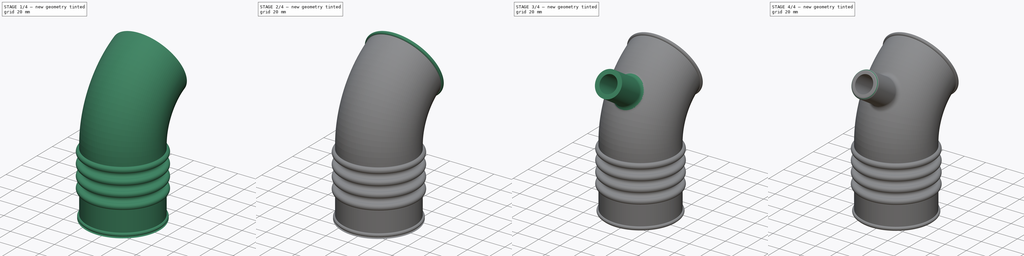
[diagram: build sequence overview — one tinted view per stage of 4, left to right]
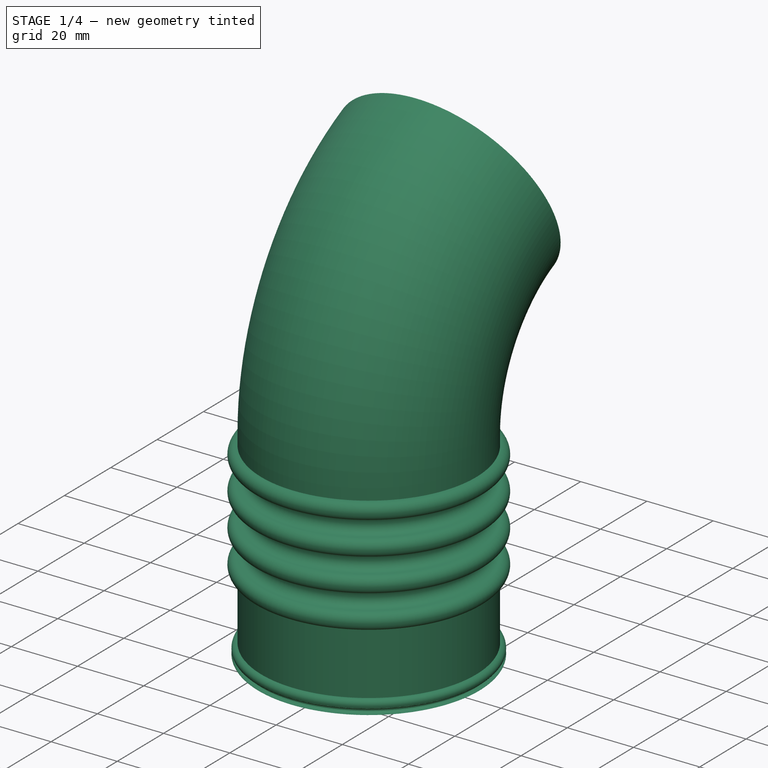
[diagram: stage 1 of 4 — iso view after this stage's code; geometry added in this stage tinted green]
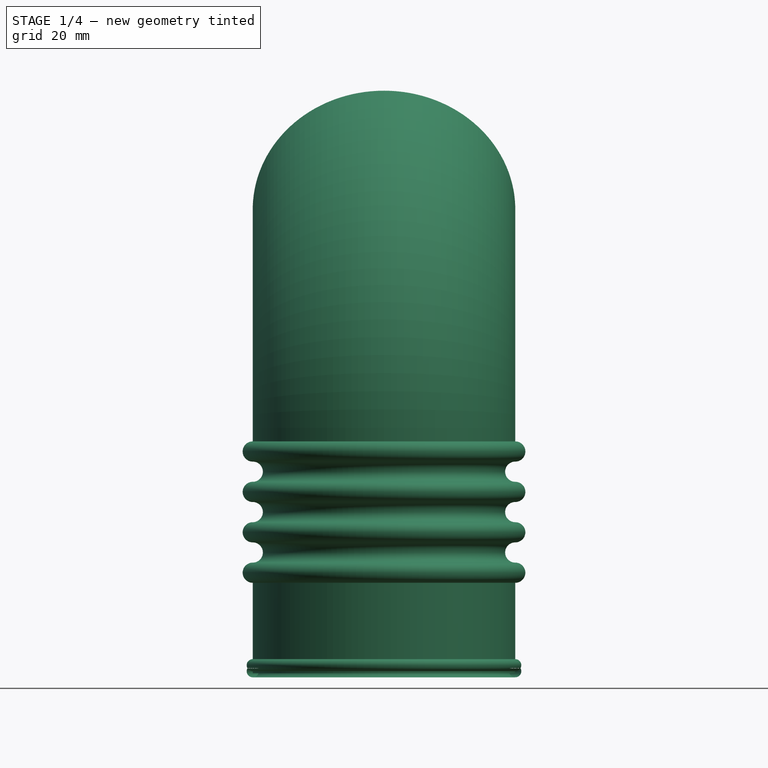
[diagram: stage 1 of 4 — front view after this stage's code; geometry added in this stage tinted green]
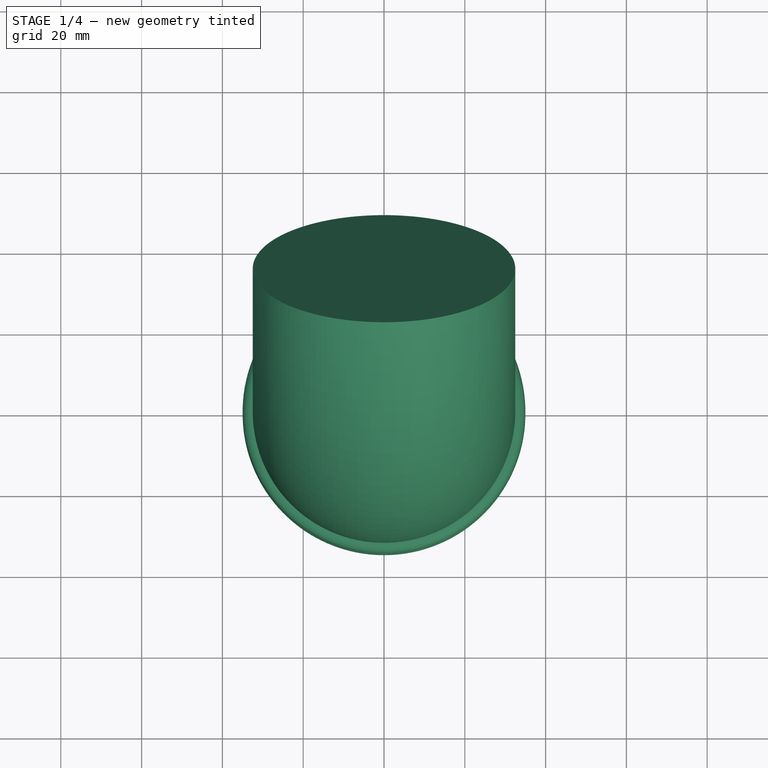
[diagram: stage 1 of 4 — top view after this stage's code; geometry added in this stage tinted green]
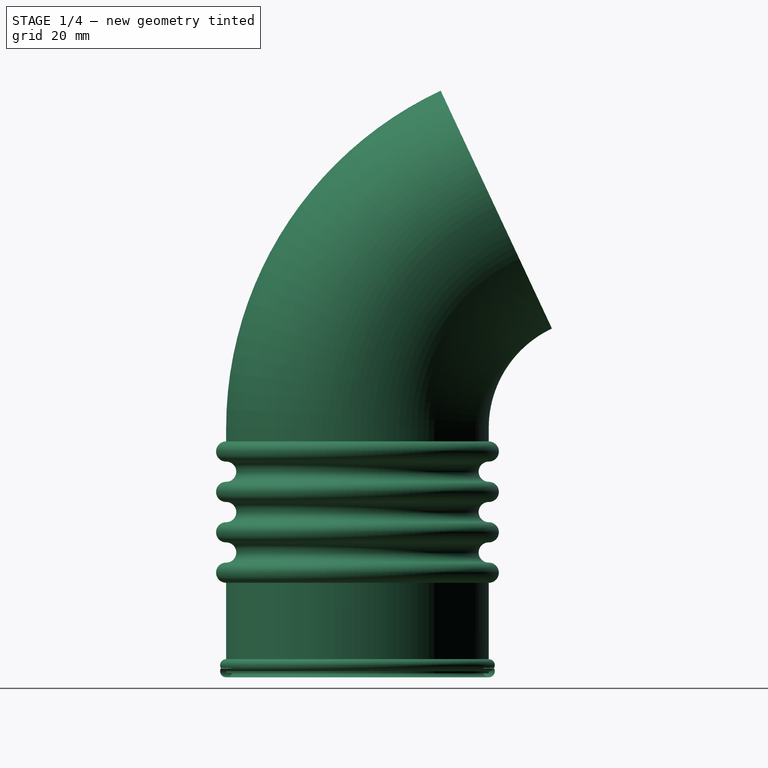
[diagram: stage 1 of 4 — right view after this stage's code; geometry added in this stage tinted green]
FCSTD DOCUMENT  (FreeCAD 1.0R39109 (Git))
Label: MAF Pipe Rotate Sketch
License: All rights reserved
LicenseURL: https://en.wikipedia.org/wiki/All_rights_reserved
objects: Sketcher::SketchObject×8, PartDesign::Plane×3, PartDesign::Fillet×3, PartDesign::Revolution×2, PartDesign::AdditivePipe×1, PartDesign::SubtractivePipe×1, PartDesign::Pad×1, PartDesign::Hole×1, PartDesign::Body×1
note: 47 computed .brp shape members not serialized (recipe doc carries the construction recipe); baked Part::Feature solids carry a one-line shape summary decoded from their .brp

FEATURE [Sketcher::SketchObject] Sketch
  ArcFitTolerance = 1e-06
  AttachmentSupport = -> [YZ_Plane]
  FullyConstrained = false
  MakeInternals = false
  MapMode = 5
  Placement = pos=(0,0,0) rot=(0.57735,0.57735,0.57735;2.0944rad)
  sketch-geometry (25):
    g0: LineSegment StartX=-32.5 StartY=60.7612 StartZ=0 EndX=-32.5 EndY=57.4054 EndZ=0
    g1: ArcOfCircle CenterX=-32.5 CenterY=24.9054 CenterZ=0 NormalX=0 NormalY=0 NormalZ=1 AngleXU=0 Radius=2.5 StartAngle=1.5708 EndAngle=4.71239
    g2: ArcOfCircle CenterX=-32.5 CenterY=29.9054 CenterZ=0 NormalX=0 NormalY=0 NormalZ=1 AngleXU=0 Radius=2.5 StartAngle=4.71239 EndAngle=7.85398
    g3: ArcOfCircle CenterX=-32.5 CenterY=34.9054 CenterZ=0 NormalX=0 NormalY=0 NormalZ=1 AngleXU=0 Radius=2.5 StartAngle=1.5708 EndAngle=4.71239
    g4: ArcOfCircle CenterX=-32.5 CenterY=39.9054 CenterZ=0 NormalX=0 NormalY=0 NormalZ=1 AngleXU=0 Radius=2.5 StartAngle=4.71239 EndAngle=7.85398
    g5: ArcOfCircle CenterX=-32.5 CenterY=44.9054 CenterZ=0 NormalX=0 NormalY=0 NormalZ=1 AngleXU=0 Radius=2.5 StartAngle=1.5708 EndAngle=4.71239
    g6: ArcOfCircle CenterX=-32.5 CenterY=49.9054 CenterZ=0 NormalX=0 NormalY=0 NormalZ=1 AngleXU=0 Radius=2.5 StartAngle=4.71239 EndAngle=7.85398
    g7: ArcOfCircle CenterX=-32.5 CenterY=54.9054 CenterZ=0 NormalX=0 NormalY=0 NormalZ=1 AngleXU=0 Radius=2.5 StartAngle=1.5708 EndAngle=4.71239
    g8: LineSegment StartX=-32.5 StartY=22.4054 StartZ=0 EndX=-32.5 EndY=3.50888 EndZ=0
    g9: ArcOfCircle CenterX=-32.5 CenterY=2.00888 CenterZ=0 NormalX=0 NormalY=0 NormalZ=1 AngleXU=0 Radius=1.5 StartAngle=1.5708 EndAngle=4.7131
    g10: LineSegment StartX=-31 StartY=60.7612 StartZ=0 EndX=-30.9999 EndY=57.5012 EndZ=0
    g11: ArcOfCircle CenterX=-32.5005 CenterY=57.5011 CenterZ=0 NormalX=0 NormalY=0 NormalZ=-1 AngleXU=1.5708 Radius=1.50065 StartAngle=1.57076 EndAngle=3.14138
    g12: ArcOfCircle CenterX=-32.5 CenterY=55.0005 CenterZ=0 NormalX=0 NormalY=0 NormalZ=1 AngleXU=0 Radius=1.00001 StartAngle=1.571 EndAngle=4.71239
    g13: ArcOfCircle CenterX=-32.5 CenterY=50.0005 CenterZ=0 NormalX=0 NormalY=0 NormalZ=1 AngleXU=0 Radius=4 StartAngle=4.71239 EndAngle=7.85399
    g14: ArcOfCircle CenterX=-32.5 CenterY=45.0005 CenterZ=0 NormalX=0 NormalY=0 NormalZ=1 AngleXU=0 Radius=1 StartAngle=1.5708 EndAngle=4.71239
    g15: ArcOfCircle CenterX=-32.5 CenterY=40.0005 CenterZ=0 NormalX=0 NormalY=0 NormalZ=1 AngleXU=0 Radius=4 StartAngle=4.71239 EndAngle=7.85398
    g16: ArcOfCircle CenterX=-32.5 CenterY=35.0005 CenterZ=0 NormalX=0 NormalY=0 NormalZ=1 AngleXU=0 Radius=1 StartAngle=1.5708 EndAngle=4.71239
    g17: ArcOfCircle CenterX=-32.5 CenterY=30.0005 CenterZ=0 NormalX=0 NormalY=0 NormalZ=1 AngleXU=0 Radius=4 StartAngle=4.71239 EndAngle=7.85398
    g18: ArcOfCircle CenterX=-32.5 CenterY=24.9999 CenterZ=0 NormalX=0 NormalY=0 NormalZ=1 AngleXU=0 Radius=1.0006 StartAngle=1.57079 EndAngle=4.71227
    g19: ArcOfCircle CenterX=-32.5003 CenterY=22.4979 CenterZ=0 NormalX=0 NormalY=0 NormalZ=-1 AngleXU=6.32484e-07 Radius=1.50137 StartAngle=1.57091 EndAngle=3.14159
    g20: LineSegment StartX=-30.9989 StartY=22.4979 StartZ=0 EndX=-30.9989 EndY=0 EndZ=0
    g21: ArcOfCircle CenterX=-32.5 CenterY=0.508885 CenterZ=0 NormalX=0 NormalY=0 NormalZ=-1 AngleXU=2e-16 Radius=1.5 StartAngle=1.5708 EndAngle=1.5708
    g22: LineSegment StartX=-30.9989 StartY=0 StartZ=0 EndX=-32.4989 EndY=0 EndZ=0
    g23: LineSegment StartX=-32.4989 StartY=0.508885 StartZ=0 EndX=-32.4989 EndY=0 EndZ=0
    g24: LineSegment StartX=-32.5 StartY=60.7612 StartZ=0 EndX=-31 EndY=60.7612 EndZ=0
  constraints (49):
    c: Vertical(g0)
    c: Diameter(g1) = 5
    c: PointOnObject(g1,g0)
    c: Diameter(g2) = 5
    c: Diameter(g3) = 5
    c: PointOnObject(g3,g0)
    c: Diameter(g4) = 5
    c: PointOnObject(g4,g0)
    c: Diameter(g5) = 5
    c: PointOnObject(g5,g0)
    c: Diameter(g6) = 5
    c: PointOnObject(g6,g0)
    c: Diameter(g7) = 5
    c: PointOnObject(g7,g0)
    c: PointOnObject(g1,g8)
    c: PointOnObject(g8,g1)
    c: Tangent(g2,g1) = 1.5708
    c: Tangent(g3,g2) = 1.5708
    c: Tangent(g4,g3) = 1.5708
    c: Tangent(g5,g4) = 1.5708
    c: Tangent(g6,g5) = 1.5708
    c: Tangent(g7,g6) = 1.5708
    c: Coincident(g0,g7)
    c: Diameter(g9) = 3
    c: PointOnObject(g9,g8)
    c: Coincident(g9,g8)
    c: Tangent(g10,g11) = 1.5708
    c: Tangent(g11,g12) = 1.5708
    c: Tangent(g12,g13) = 1.5708
    c: Tangent(g13,g14) = 1.5708
    c: Tangent(g14,g15) = 1.5708
    c: Tangent(g15,g16) = 1.5708
    c: Tangent(g16,g17) = 1.5708
    c: Tangent(g17,g18) = 1.5708
    c: Tangent(g18,g19) = 1.5708
    c: Tangent(g19,g20) = 1.5708
    c: Vertical(g20)
    c: Vertical(g8)
    c: Distance(g22) = 1.5
    c: Coincident(g22,g20)
    c: PointOnObject(g22,g-1)
    c: Horizontal(g22)
    c: Coincident(g23,g9)
    c: Coincident(g23,g22)
    c: Vertical(g23)
    c: Distance(g24) = 1.5
    c: Coincident(g10,g24)
    c: Coincident(g21,g21)
    c: Coincident(g0,g24)
FEATURE [PartDesign::Revolution] Revolution
  Angle = 360
  Angle2 = 60
  Axis = (0,0,1)
  Base = (0,0,0)
  Placement = pos=(0,0,0) rot=(1,1,1;2.0944rad)
  Profile = -> Sketch
  ReferenceAxis = -> Sketch [V_Axis]
  Refine = true
  Suppressed = false
  Type = 0
FEATURE [Sketcher::SketchObject] Sketch001  label="CurveBase"
  ArcFitTolerance = 1e-06
  AttachmentSupport = -> [Revolution]
  ExternalGeometry = -> [Revolution]
  FullyConstrained = true
  MakeInternals = false
  MapMode = 5
  Placement = pos=(-2.02e-14,6.7e-15,60.7612) rot=(0,0,-1;1.5708rad)
  sketch-geometry (1):
    g0: Circle CenterX=0 CenterY=0 CenterZ=0 NormalX=0 NormalY=0 NormalZ=1 AngleXU=0 Radius=32.5
  constraints (2):
    c: Coincident(g0,g-1)
    c: Tangent(g0,g-3)
FEATURE [Sketcher::SketchObject] Sketch002  label="Curve"
  ArcFitTolerance = 1e-06
  AttachmentSupport = -> [YZ_Plane]
  ExternalGeometry = -> [Revolution]
  FullyConstrained = false
  MakeInternals = false
  MapMode = 5
  Placement = pos=(0,0,0) rot=(0.57735,0.57735,0.57735;2.0944rad)
  sketch-geometry (1):
    g0: ArcOfCircle CenterX=59.641 CenterY=60.7612 CenterZ=0 NormalX=0 NormalY=0 NormalZ=1 AngleXU=0 Radius=59.641 StartAngle=2.00835 EndAngle=3.14159
  constraints (3):
    c: PointOnObject(g0,g-2)
    c: PointOnObject(g0,g-3)
    c: Perpendicular(g0,g-3)
FEATURE [PartDesign::AdditivePipe] AdditivePipe
  AuxilleryCurvelinear = true
  AuxillerySpineTangent = false
  BaseFeature = -> Revolution
  Binormal = (0,0,0)
  Mode = 0
  Placement = pos=(0,0,0) rot=(1,1,1;2.0944rad)
  Profile = -> Sketch001
  Refine = true
  Spine = -> Sketch002
  SpineTangent = false
  Suppressed = false
  Transformation = 0
  Transition = 0
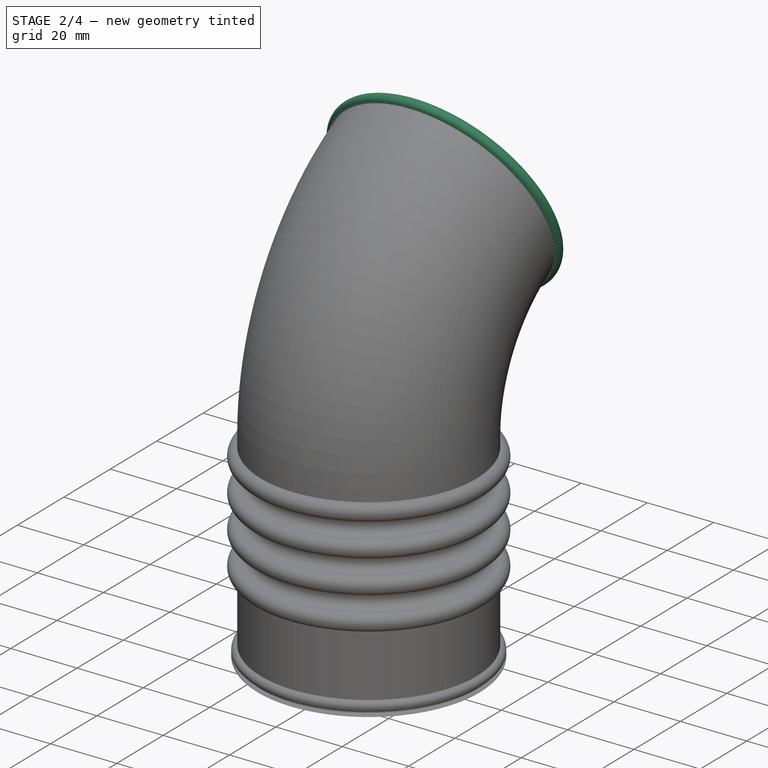
[diagram: stage 2 of 4 — iso view after this stage's code; geometry added in this stage tinted green]
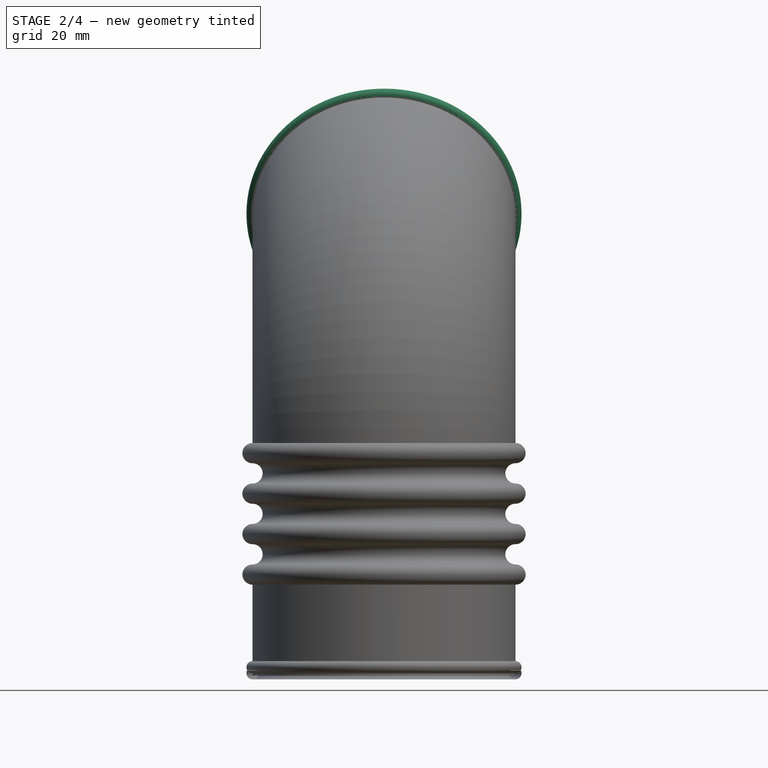
[diagram: stage 2 of 4 — front view after this stage's code; geometry added in this stage tinted green]
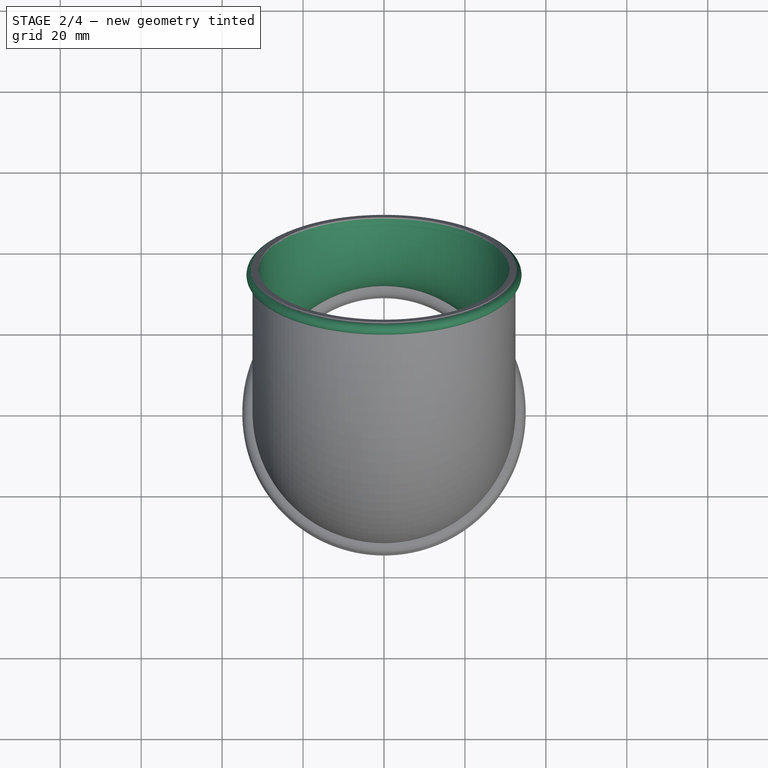
[diagram: stage 2 of 4 — top view after this stage's code; geometry added in this stage tinted green]
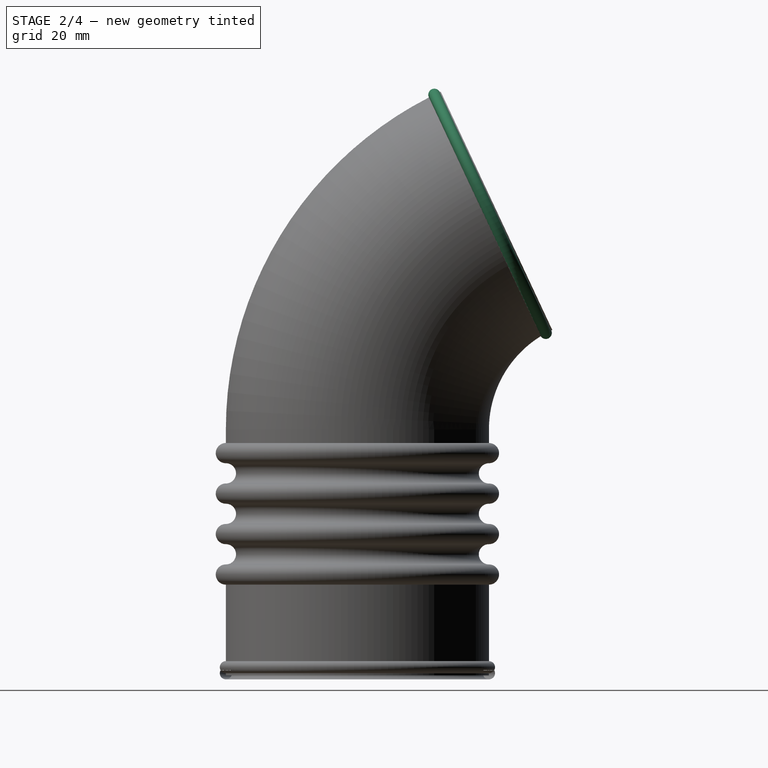
[diagram: stage 2 of 4 — right view after this stage's code; geometry added in this stage tinted green]
FEATURE [Sketcher::SketchObject] Sketch003
  ArcFitTolerance = 1e-06
  AttachmentSupport = -> [Revolution]
  ExternalGeometry = -> [Revolution]
  FullyConstrained = true
  MakeInternals = false
  MapMode = 5
  Placement = pos=(-2.02e-14,6.7e-15,60.7612) rot=(0,0,-1;1.5708rad)
  sketch-geometry (1):
    g0: Circle CenterX=0 CenterY=0 CenterZ=0 NormalX=0 NormalY=0 NormalZ=1 AngleXU=0 Radius=31
  constraints (2):
    c: Coincident(g0,g-1)
    c: Tangent(g0,g-3)
FEATURE [PartDesign::SubtractivePipe] SubtractivePipe
  AuxilleryCurvelinear = true
  AuxillerySpineTangent = false
  BaseFeature = -> AdditivePipe
  Binormal = (0,0,0)
  Mode = 0
  Placement = pos=(0,0,0) rot=(1,1,1;2.0944rad)
  Profile = -> Sketch003
  Refine = true
  Spine = -> Sketch002
  SpineTangent = false
  Suppressed = false
  Transformation = 0
  Transition = 2
FEATURE [PartDesign::Plane] DatumPlane
  AttachmentSupport = -> [SubtractivePipe]
  Length = 195.14
  MapMode = 11
  Placement = pos=(-6.07e-14,59.641,60.7612) rot=(-0.472955,0.743389,-0.472955;1.86308rad)
  ResizeMode = 0
  Width = 230.338
FEATURE [Sketcher::SketchObject] Sketch004
  ArcFitTolerance = 1e-06
  AttachmentSupport = -> [DatumPlane]
  ExternalGeometry = -> [SubtractivePipe]
  FullyConstrained = false
  MakeInternals = false
  MapMode = 5
  Placement = pos=(-6.07e-14,59.641,60.7612) rot=(-0.472955,0.743389,-0.472955;1.86308rad)
  sketch-geometry (1):
    g0: Circle CenterX=1.75997 CenterY=-92.1242 CenterZ=0 NormalX=0 NormalY=0 NormalZ=1 AngleXU=0 Radius=1.5
  constraints (2):
    c: Diameter(g0) = 3
    c: PointOnObject(g0,g-4)
FEATURE [PartDesign::Revolution] Revolution001
  Angle = 360
  Angle2 = 60
  Axis = (2e-16,0.905792,0.423723)
  Base = (-9.67e-14,34.3698,114.784)
  BaseFeature = -> SubtractivePipe
  Placement = pos=(0,0,0) rot=(1,1,1;2.0944rad)
  Profile = -> Sketch004 [Edge1]
  ReferenceAxis = -> SubtractivePipe [Edge9]
  Refine = true
  Reversed = true
  Suppressed = false
  Type = 0
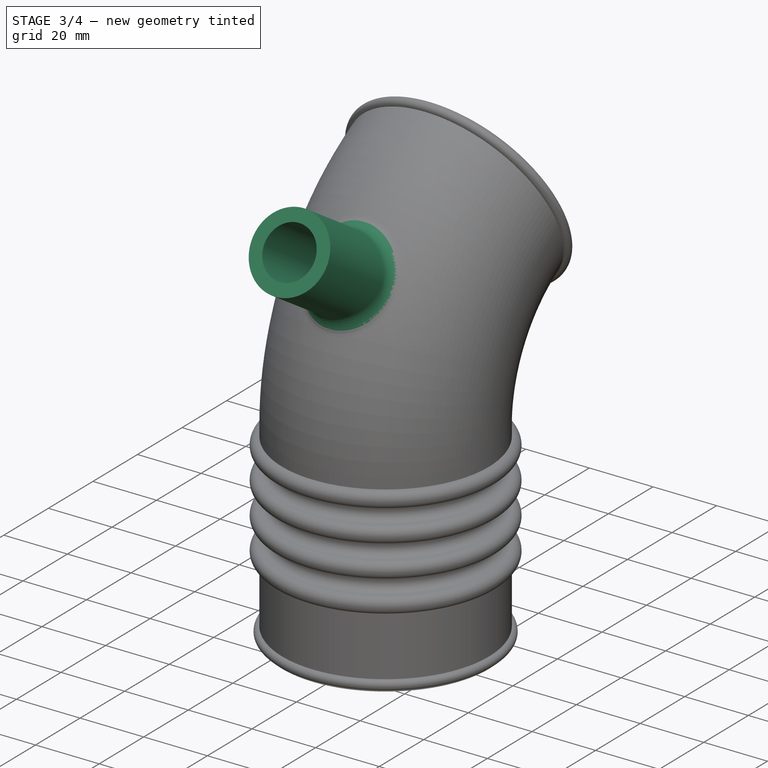
[diagram: stage 3 of 4 — iso view after this stage's code; geometry added in this stage tinted green]
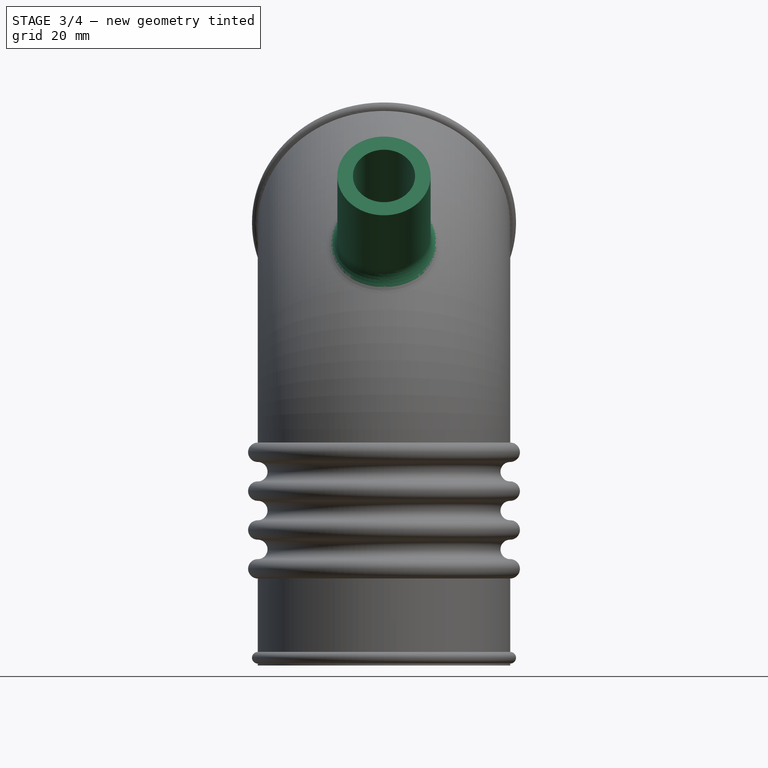
[diagram: stage 3 of 4 — front view after this stage's code; geometry added in this stage tinted green]
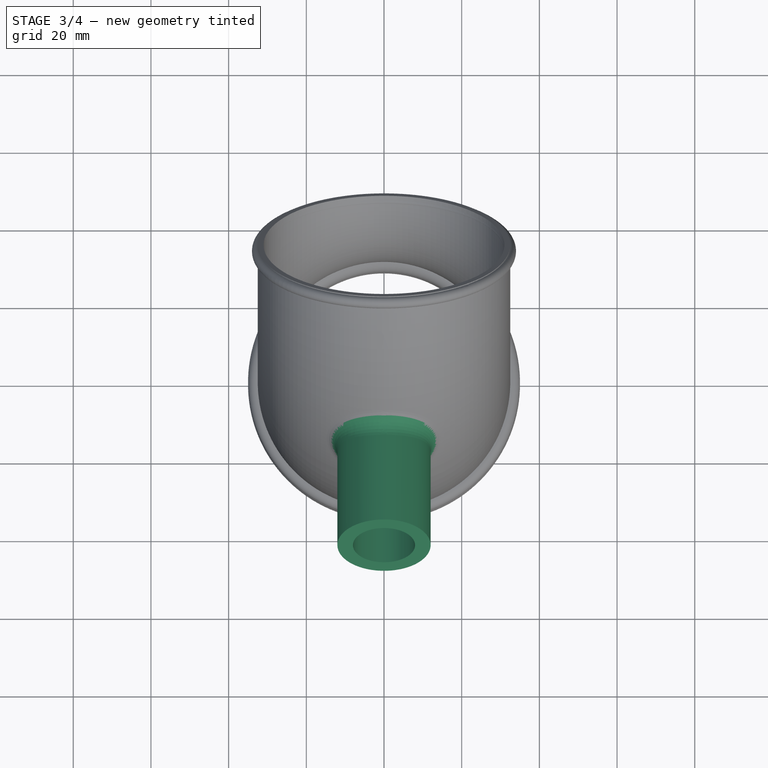
[diagram: stage 3 of 4 — top view after this stage's code; geometry added in this stage tinted green]
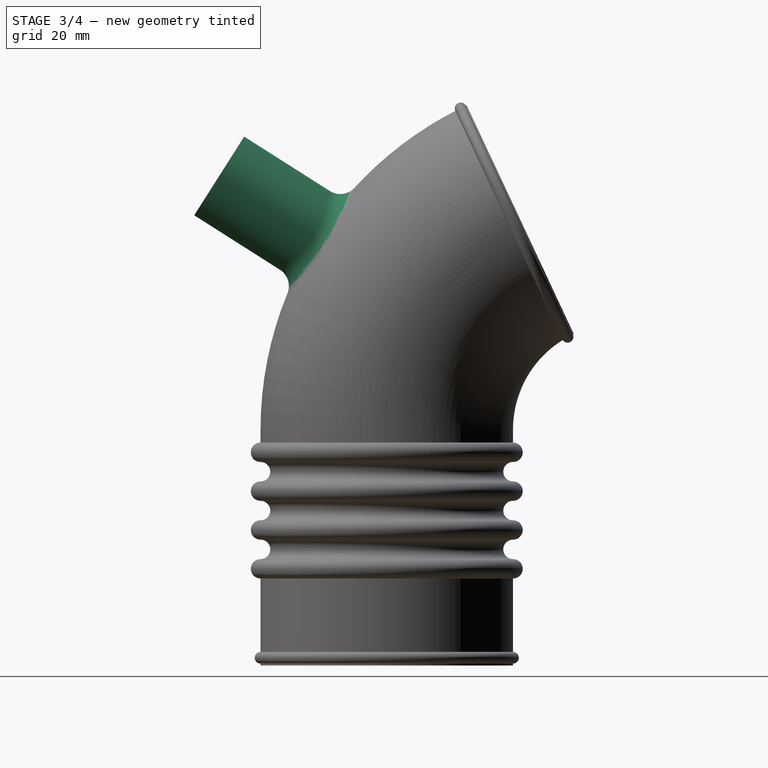
[diagram: stage 3 of 4 — right view after this stage's code; geometry added in this stage tinted green]
FEATURE [PartDesign::Plane] DatumPlane001
  AttachmentSupport = -> [Revolution001]
  Length = 199.5
  MapMode = 11
  Placement = pos=(-8.1e-14,59.641,60.7612) rot=(-0.462592,0.756318,-0.462592;1.84653rad)
  ResizeMode = 0
  Width = 231.242
FEATURE [Sketcher::SketchObject] Sketch005
  ArcFitTolerance = 1e-06
  AttachmentSupport = -> [DatumPlane001]
  FullyConstrained = false
  MakeInternals = false
  MapMode = 5
  Placement = pos=(-8.1e-14,59.641,60.7612) rot=(-0.462592,0.756318,-0.462592;1.84653rad)
  sketch-geometry (1):
    g0: LineSegment StartX=0 StartY=0 StartZ=0 EndX=61.7631 EndY=-104.931 EndZ=0
  constraints (1):
    c: Coincident(g0,g-1)
FEATURE [PartDesign::Plane] DatumPlane002
  AttachmentSupport = -> [Sketch005]
  Length = 93.3832
  MapMode = 7
  Placement = pos=(-8.34e-14,-43.1386,126.041) rot=(1,0,0;1.00493rad)
  ResizeMode = 0
  Width = 218.837
FEATURE [Sketcher::SketchObject] Sketch007
  ArcFitTolerance = 1e-06
  AttachmentSupport = -> [DatumPlane002]
  FullyConstrained = true
  MakeInternals = false
  MapMode = 5
  Placement = pos=(-8.34e-14,-43.1386,126.041) rot=(1,0,0;1.00493rad)
  sketch-geometry (2):
    g0: Circle CenterX=0 CenterY=0 CenterZ=0 NormalX=0 NormalY=0 NormalZ=1 AngleXU=0 Radius=8
    g1: Circle CenterX=0 CenterY=0 CenterZ=0 NormalX=0 NormalY=0 NormalZ=1 AngleXU=0 Radius=12
  constraints (4):
    c: Diameter(g0) = 16
    c: Coincident(g0,g-1)
    c: Diameter(g1) = 24
    c: Coincident(g1,g0)
FEATURE [PartDesign::Pad] Pad
  BaseFeature = -> Revolution001
  Direction = (0,-0.844126,0.536144)
  Length = 10
  Length2 = 10
  Placement = pos=(0,0,0) rot=(1,1,1;2.0944rad)
  Profile = -> Sketch007
  ReferenceAxis = -> Sketch007 [N_Axis]
  Refine = true
  Suppressed = false
  Type = 5
FEATURE [PartDesign::Fillet] Fillet
  Base = -> Pad [Edge11,Edge10,Edge7]
  BaseFeature = -> Pad
  Placement = pos=(0,0,0) rot=(1,1,1;2.0944rad)
  Radius = 5
  Refine = true
  SupportTransform = false
  Suppressed = false
  UseAllEdges = false
FEATURE [Sketcher::SketchObject] Sketch008
  ArcFitTolerance = 1e-06
  AttachmentSupport = -> [Fillet]
  ExternalGeometry = -> [Sketch005,Fillet]
  FullyConstrained = true
  MakeInternals = false
  MapMode = 5
  Placement = pos=(-1.86e-14,-87.7814,55.7541) rot=(0.433894,0.433894,-0.789602;1.80486rad)
  sketch-geometry (1):
    g0: Circle CenterX=-83.2664 CenterY=0 CenterZ=0 NormalX=0 NormalY=0 NormalZ=1 AngleXU=0 Radius=8
  constraints (2):
    c: Coincident(g0,g-4)
    c: Equal(g0,g-4)
FEATURE [PartDesign::Hole] Hole
  BaseFeature = -> Fillet
  CustomThreadClearance = 0
  Depth = 50
  DepthType = 0
  Diameter = 16
  DrillForDepth = false
  DrillPoint = 1
  DrillPointAngle = 118
  HoleCutCountersinkAngle = 90
  HoleCutCustomValues = false
  HoleCutDepth = 0
  HoleCutDiameter = 6.1
  HoleCutType = 0
  ModelThread = false
  Placement = pos=(0,0,0) rot=(1,1,1;2.0944rad)
  Profile = -> Sketch008
  Refine = true
  Suppressed = false
  Tapered = false
  TaperedAngle = 90
  ThreadClass = 0
  ThreadDepth = 50
  ThreadDepthType = 0
  ThreadDirection = 0
  ThreadFit = 0
  ThreadSize = 0
  ThreadType = 0
  Threaded = false
  UseCustomThreadClearance = false
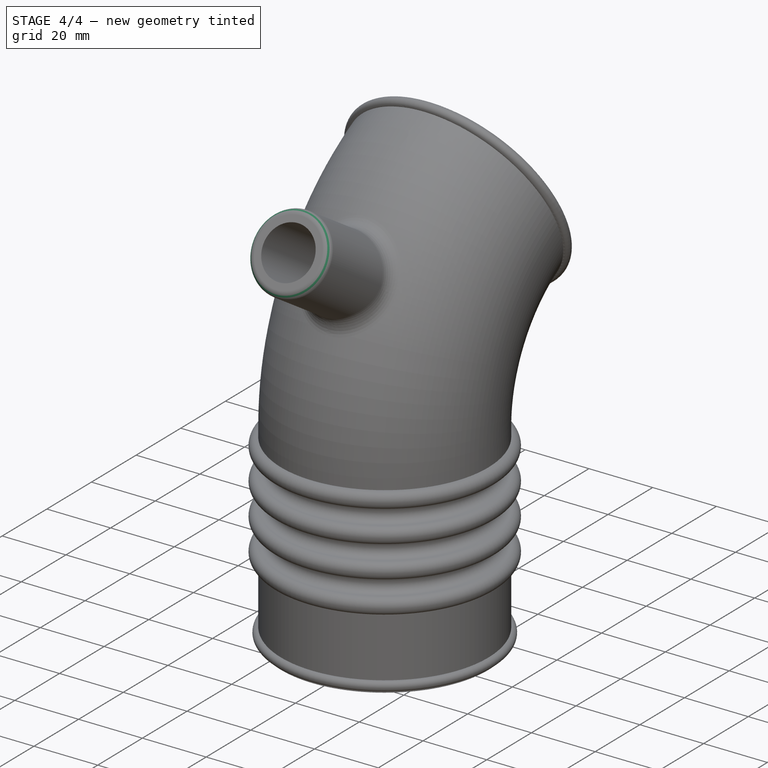
[diagram: stage 4 of 4 — iso view after this stage's code; geometry added in this stage tinted green]
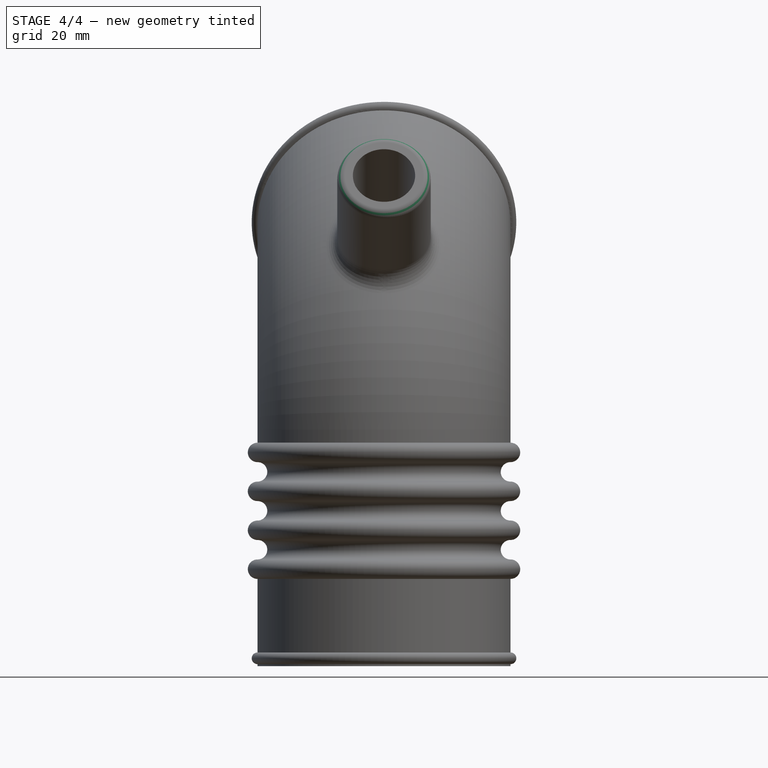
[diagram: stage 4 of 4 — front view after this stage's code; geometry added in this stage tinted green]
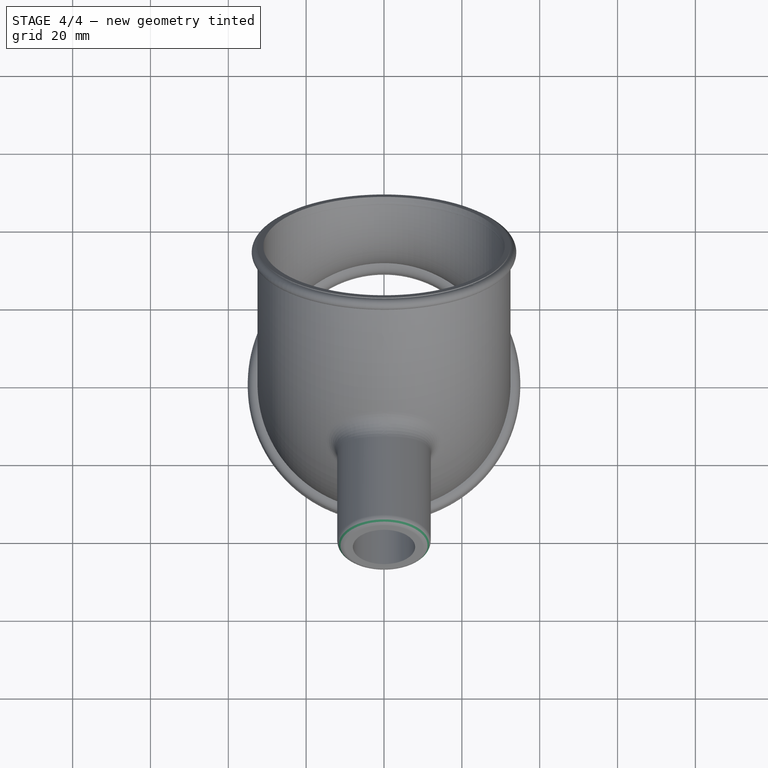
[diagram: stage 4 of 4 — top view after this stage's code; geometry added in this stage tinted green]
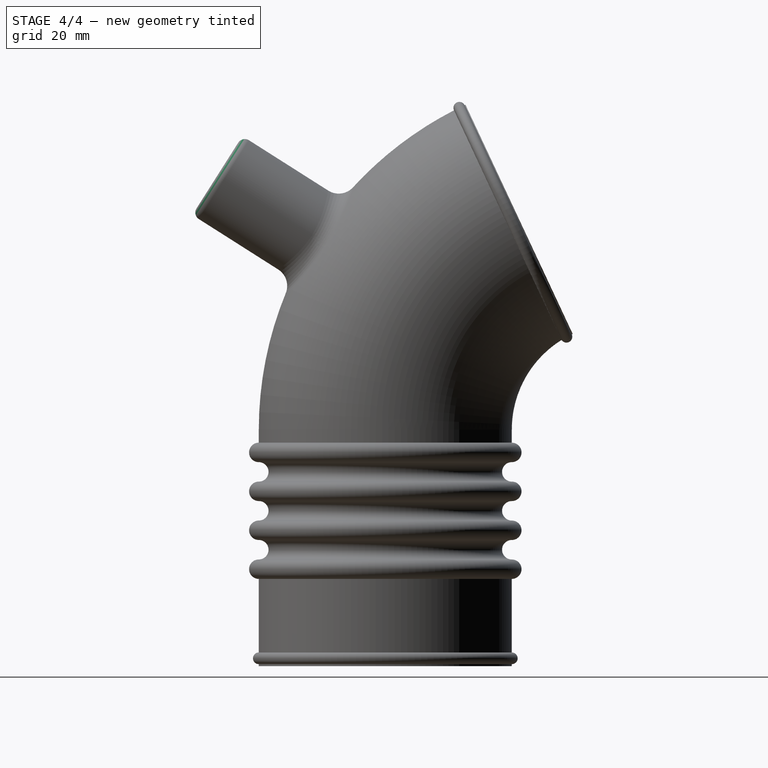
[diagram: stage 4 of 4 — right view after this stage's code; geometry added in this stage tinted green]
FEATURE [PartDesign::Fillet] Fillet001
  Base = -> Hole [Edge42,Edge43,Edge44]
  BaseFeature = -> Hole
  Placement = pos=(0,0,0) rot=(1,1,1;2.0944rad)
  Radius = 5
  Refine = true
  SupportTransform = false
  Suppressed = false
  UseAllEdges = false
FEATURE [PartDesign::Fillet] Fillet002
  Base = -> Fillet001 [Edge9]
  BaseFeature = -> Fillet001
  Placement = pos=(0,0,0) rot=(1,1,1;2.0944rad)
  Radius = 2
  Refine = true
  SupportTransform = false
  Suppressed = false
  UseAllEdges = false
FEATURE [PartDesign::Body] Body
  AllowCompound = false
  Group = -> [Sketch,Revolution,Sketch001,Sketch002,AdditivePipe,Sketch003,SubtractivePipe,DatumPlane,Sketch004,Revolution001,DatumPlane001,Sketch005,DatumPlane002,Sketch007,Pad,Fillet,Sketch008,Hole,Fillet001,Fillet002]
  Origin = -> Origin
  Tip = -> Fillet002
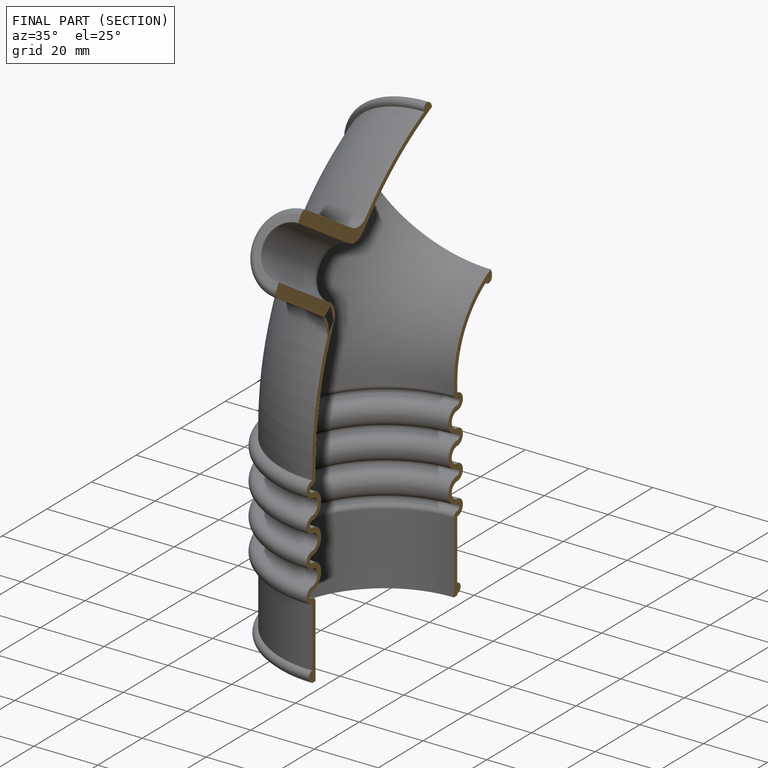
[diagram: finished part — half-section view (interior)]
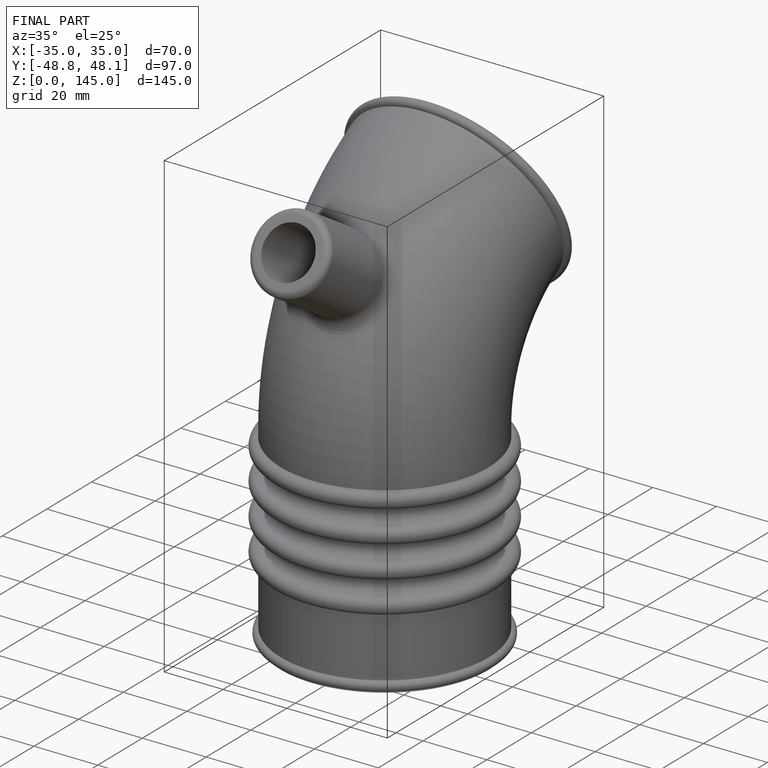
[diagram: finished part — iso view with bounding-box wireframe]
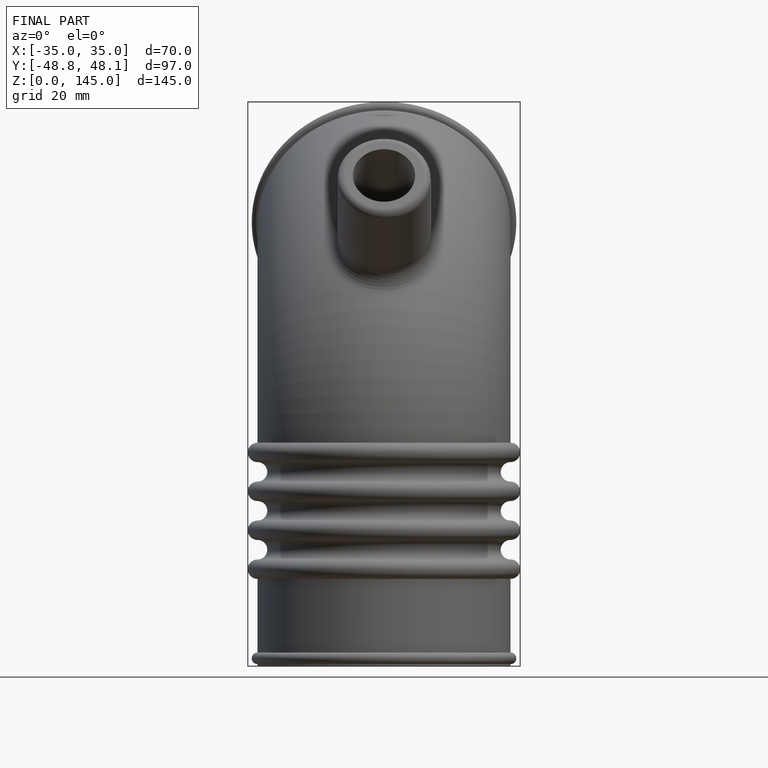
[diagram: finished part — front view with bounding-box wireframe]
